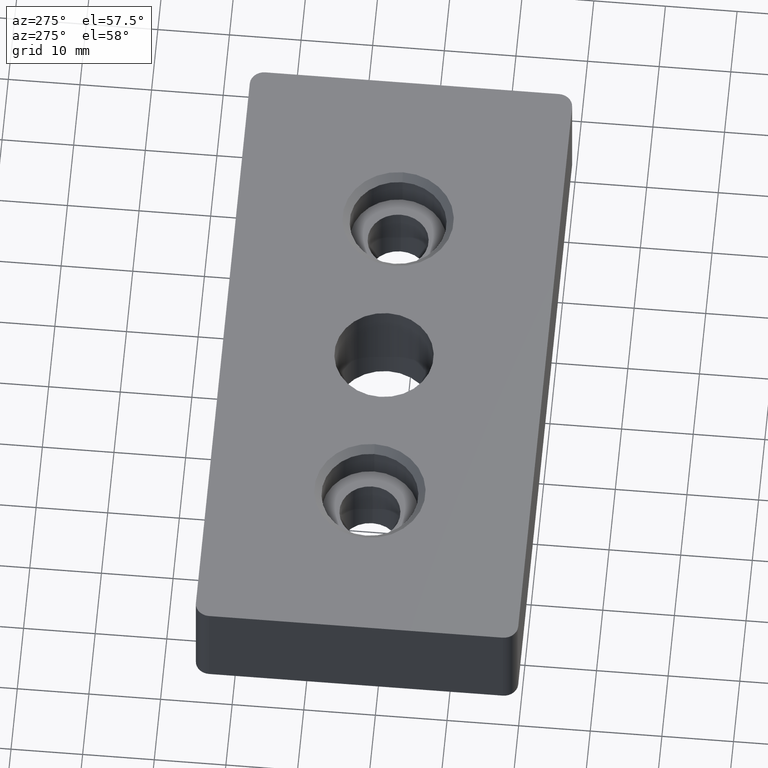
[diagram: clean part render]
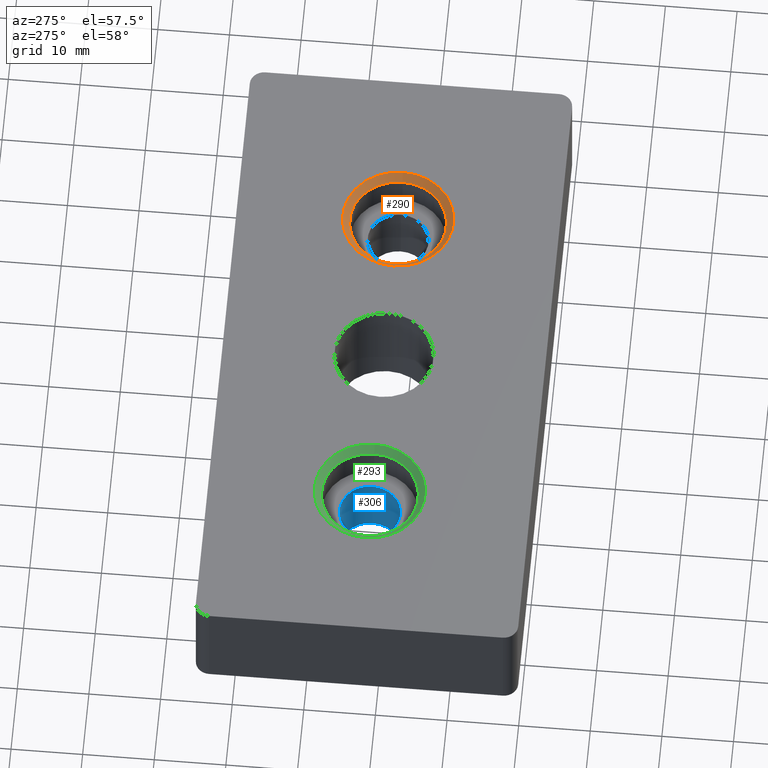
[diagram: same view with three faces highlighted in distinct colors, each labeled with its STEP entity id]
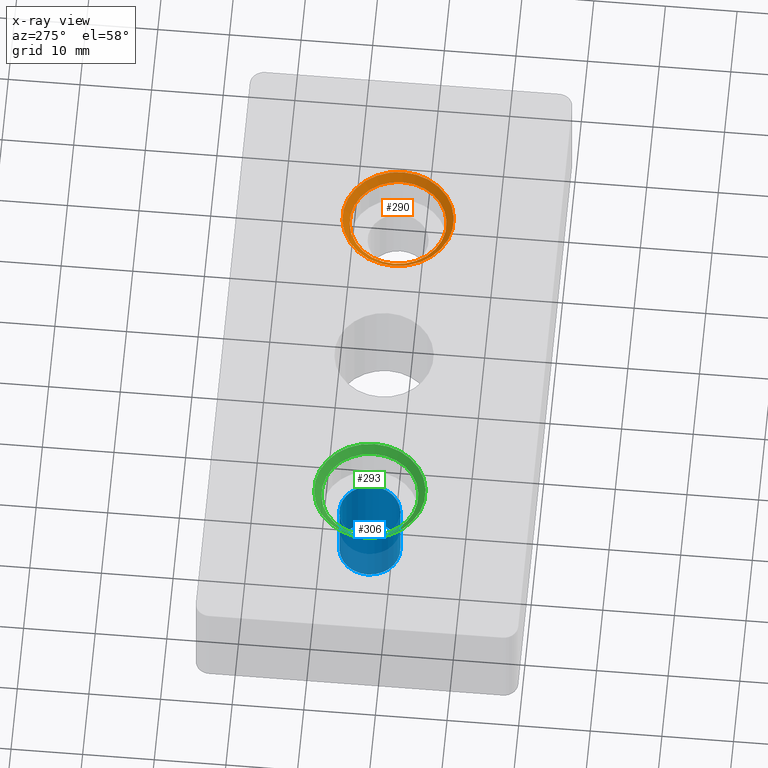
[diagram: x-ray of the same camera — body ghosted, the three highlighted faces saturated]
A machine part, auxiliary view with three faces highlighted in distinct colors.
The next image is the same camera in x-ray (body ghosted, the three faces saturated) — at least one of them is partly hidden behind the body in this view.
Their STEP definitions:

[orange] entity #290 — the highlighted conical surface has half-angle 45 deg.
#64=FACE_BOUND('',#99,.T.);
#79=FACE_OUTER_BOUND('',#98,.T.);
#98=EDGE_LOOP('',(#216));
#99=EDGE_LOOP('',(#217));
#132=CIRCLE('',#312,6.75);
#133=CIRCLE('',#313,7.75);
#152=VERTEX_POINT('',#448);
#153=VERTEX_POINT('',#450);
#180=EDGE_CURVE('',#152,#152,#132,.T.);
#181=EDGE_CURVE('',#153,#153,#133,.T.);
#216=ORIENTED_EDGE('',*,*,#180,.T.);
#217=ORIENTED_EDGE('',*,*,#181,.T.);
#288=CONICAL_SURFACE('',#311,7.25,44.9999999999999);
#290=ADVANCED_FACE('',(#79,#64),#288,.F.);
#311=AXIS2_PLACEMENT_3D('',#447,#352,#353);
#312=AXIS2_PLACEMENT_3D('',#449,#354,#355);
#313=AXIS2_PLACEMENT_3D('',#451,#356,#357);
#352=DIRECTION('center_axis',(0.,0.,1.));
#353=DIRECTION('ref_axis',(-1.,0.,0.));
#354=DIRECTION('center_axis',(0.,0.,-1.));
#355=DIRECTION('ref_axis',(-1.,0.,0.));
#356=DIRECTION('center_axis',(0.,0.,1.));
#357=DIRECTION('ref_axis',(-1.,0.,0.));
#447=CARTESIAN_POINT('Origin',(51.2824833985414,13.0678536302736,14.5));
#448=CARTESIAN_POINT('',(58.0324833985414,13.0678536302736,14.));
#449=CARTESIAN_POINT('Origin',(51.2824833985414,13.0678536302736,14.));
#450=CARTESIAN_POINT('',(59.0324833985414,13.0678536302736,15.));
#451=CARTESIAN_POINT('Origin',(51.2824833985414,13.0678536302736,15.));

[blue] entity #306 — the highlighted cylindrical surface (bore or boss wall) has radius 4.25 mm, axis along (0, 0, -1).
#22=CYLINDRICAL_SURFACE('',#347,4.25);
#77=FACE_BOUND('',#128,.T.);
#95=FACE_OUTER_BOUND('',#127,.T.);
#127=EDGE_LOOP('',(#280));
#128=EDGE_LOOP('',(#281));
#148=CIRCLE('',#336,4.25);
#150=CIRCLE('',#344,4.25);
#176=VERTEX_POINT('',#507);
#178=VERTEX_POINT('',#522);
#207=EDGE_CURVE('',#176,#176,#148,.T.);
#214=EDGE_CURVE('',#178,#178,#150,.T.);
#280=ORIENTED_EDGE('',*,*,#214,.T.);
#281=ORIENTED_EDGE('',*,*,#207,.F.);
#306=ADVANCED_FACE('',(#95,#77),#22,.F.);
#336=AXIS2_PLACEMENT_3D('',#508,#413,#414);
#344=AXIS2_PLACEMENT_3D('',#523,#434,#435);
#347=AXIS2_PLACEMENT_3D('',#527,#440,#441);
#413=DIRECTION('center_axis',(0.,0.,1.));
#414=DIRECTION('ref_axis',(-1.,0.,0.));
#434=DIRECTION('center_axis',(0.,0.,1.));
#435=DIRECTION('ref_axis',(-1.,0.,0.));
#440=DIRECTION('center_axis',(0.,0.,-1.));
#441=DIRECTION('ref_axis',(-1.,0.,0.));
#507=CARTESIAN_POINT('',(10.5324833985414,13.0678536302736,0.));
#508=CARTESIAN_POINT('Origin',(6.28248339854144,13.0678536302736,0.));
#522=CARTESIAN_POINT('',(10.5324833985414,13.0678536302736,9.5));
#523=CARTESIAN_POINT('Origin',(6.28248339854144,13.0678536302736,9.5));
#527=CARTESIAN_POINT('Origin',(6.28248339854144,13.0678536302736,15.));

[green] entity #293 — the highlighted conical surface has half-angle 45 deg.
#69=FACE_BOUND('',#107,.T.);
#82=FACE_OUTER_BOUND('',#106,.T.);
#106=EDGE_LOOP('',(#231));
#107=EDGE_LOOP('',(#232));
#138=CIRCLE('',#319,7.75);
#141=CIRCLE('',#324,6.75);
#162=VERTEX_POINT('',#469);
#165=VERTEX_POINT('',#477);
#190=EDGE_CURVE('',#162,#162,#138,.T.);
#193=EDGE_CURVE('',#165,#165,#141,.T.);
#231=ORIENTED_EDGE('',*,*,#193,.T.);
#232=ORIENTED_EDGE('',*,*,#190,.T.);
#289=CONICAL_SURFACE('',#323,7.25,45.);
#293=ADVANCED_FACE('',(#82,#69),#289,.F.);
#319=AXIS2_PLACEMENT_3D('',#470,#372,#373);
#323=AXIS2_PLACEMENT_3D('',#476,#380,#381);
#324=AXIS2_PLACEMENT_3D('',#478,#382,#383);
#372=DIRECTION('center_axis',(0.,0.,1.));
#373=DIRECTION('ref_axis',(-1.,0.,0.));
#380=DIRECTION('center_axis',(0.,0.,1.));
#381=DIRECTION('ref_axis',(-1.,0.,0.));
#382=DIRECTION('center_axis',(0.,0.,-1.));
#383=DIRECTION('ref_axis',(-1.,0.,0.));
#469=CARTESIAN_POINT('',(14.0324833985414,13.0678536302736,15.));
#470=CARTESIAN_POINT('Origin',(6.28248339854144,13.0678536302736,15.));
#476=CARTESIAN_POINT('Origin',(6.28248339854144,13.0678536302736,14.5));
#477=CARTESIAN_POINT('',(13.0324833985414,13.0678536302736,14.));
#478=CARTESIAN_POINT('Origin',(6.28248339854144,13.0678536302736,14.));